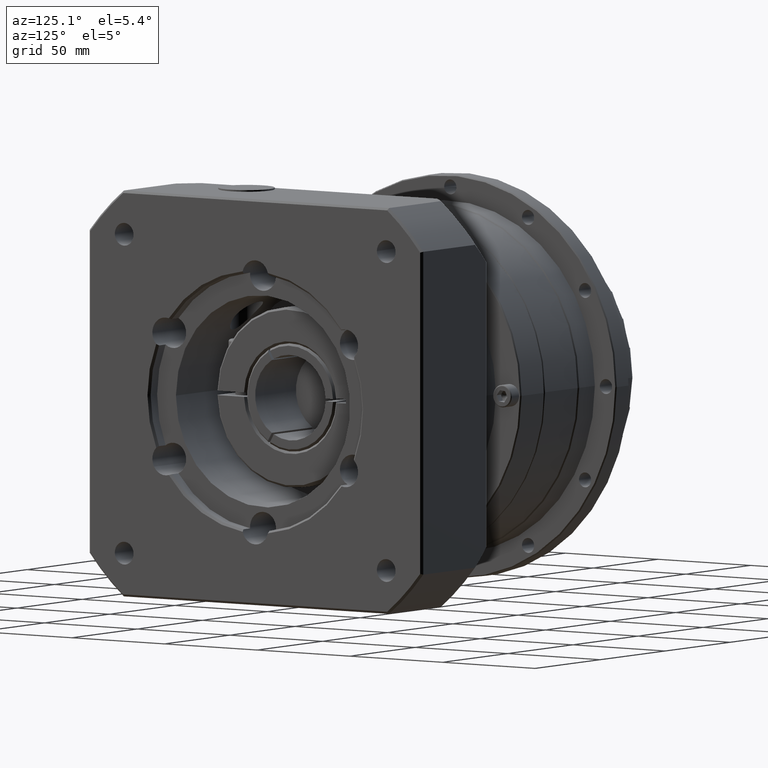
[diagram: clean part render]
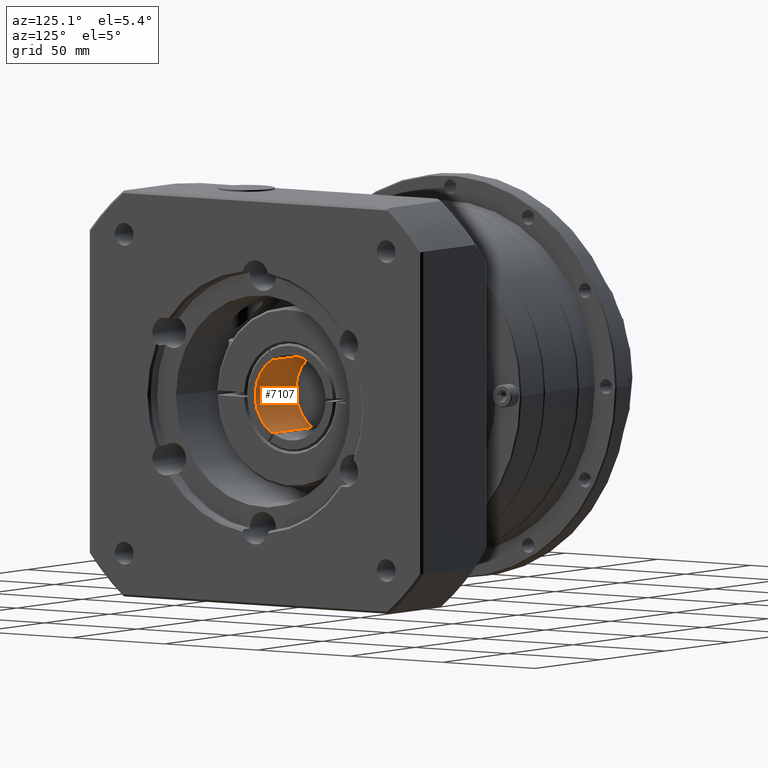
[diagram: same view with one face highlighted and labeled with its STEP entity id]
A machine part, auxiliary view. The second image highlights one B-rep face of the part: STEP entity #7107.
In plain terms, the highlighted cylindrical surface (partial cylindrical patch) has radius 19 mm, axis along (1, 0, 0).
Its self-contained STEP definition (entity closure, byte-faithful):
#388=LINE('',#12149,#671);
#392=LINE('',#12157,#675);
#671=VECTOR('',#9619,31.3);
#675=VECTOR('',#9625,31.3);
#1362=CYLINDRICAL_SURFACE('',#7897,19.);
#2053=FACE_OUTER_BOUND('',#2753,.T.);
#2753=EDGE_LOOP('',(#6087,#6088,#6089,#6090));
#3040=CIRCLE('',#7365,19.);
#3271=CIRCLE('',#7898,19.);
#3440=VERTEX_POINT('',#10440);
#3442=VERTEX_POINT('',#10443);
#3876=VERTEX_POINT('',#12148);
#3879=VERTEX_POINT('',#12156);
#4083=EDGE_CURVE('',#3442,#3440,#3040,.T.);
#4660=EDGE_CURVE('',#3876,#3442,#388,.T.);
#4664=EDGE_CURVE('',#3440,#3879,#392,.T.);
#4665=EDGE_CURVE('',#3879,#3876,#3271,.T.);
#6087=ORIENTED_EDGE('',*,*,#4083,.T.);
#6088=ORIENTED_EDGE('',*,*,#4664,.T.);
#6089=ORIENTED_EDGE('',*,*,#4665,.T.);
#6090=ORIENTED_EDGE('',*,*,#4660,.T.);
#7107=ADVANCED_FACE('',(#2053),#1362,.F.);
#7365=AXIS2_PLACEMENT_3D('',#10444,#8330,#8331);
#7897=AXIS2_PLACEMENT_3D('',#12155,#9623,#9624);
#7898=AXIS2_PLACEMENT_3D('',#12158,#9626,#9627);
#8330=DIRECTION('center_axis',(-1.,-4.16605796858423E-15,-1.89396179062146E-15));
#8331=DIRECTION('ref_axis',(-1.85037170770859E-16,1.,-2.52238830538393E-30));
#9619=DIRECTION('',(-1.,-2.06738954286357E-16,-1.89396179062147E-15));
#9623=DIRECTION('center_axis',(1.,2.06738954286357E-16,1.89396179062147E-15));
#9624=DIRECTION('ref_axis',(-1.85037170770859E-16,1.,-2.52238830538393E-30));
#9625=DIRECTION('',(1.,2.06738954286357E-16,1.89396179062147E-15));
#9626=DIRECTION('center_axis',(1.,2.06738954286357E-16,1.89396179062147E-15));
#9627=DIRECTION('ref_axis',(1.89396179062147E-15,-2.17193497409923E-30,
-1.));
#10440=CARTESIAN_POINT('',(-87.2857500619036,98.2814745941529,-21.5353313033712));
#10443=CARTESIAN_POINT('',(-87.2857500619035,98.2814745941529,-53.8278836518892));
#10444=CARTESIAN_POINT('Origin',(-87.2857500619036,108.296351812799,-37.6816074776302));
#12148=CARTESIAN_POINT('',(-55.9857500619035,98.2814745941529,-53.8278836518891));
#12149=CARTESIAN_POINT('',(-75.9857500619035,98.2814745941529,-53.8278836518892));
#12155=CARTESIAN_POINT('Origin',(-75.9857500619036,108.296351812799,-37.6816074776302));
#12156=CARTESIAN_POINT('',(-55.9857500619036,98.2814745941529,-21.5353313033711));
#12157=CARTESIAN_POINT('',(-75.9857500619036,98.2814745941529,-21.5353313033711));
#12158=CARTESIAN_POINT('Origin',(-55.9857500619036,108.296351812799,-37.6816074776301));